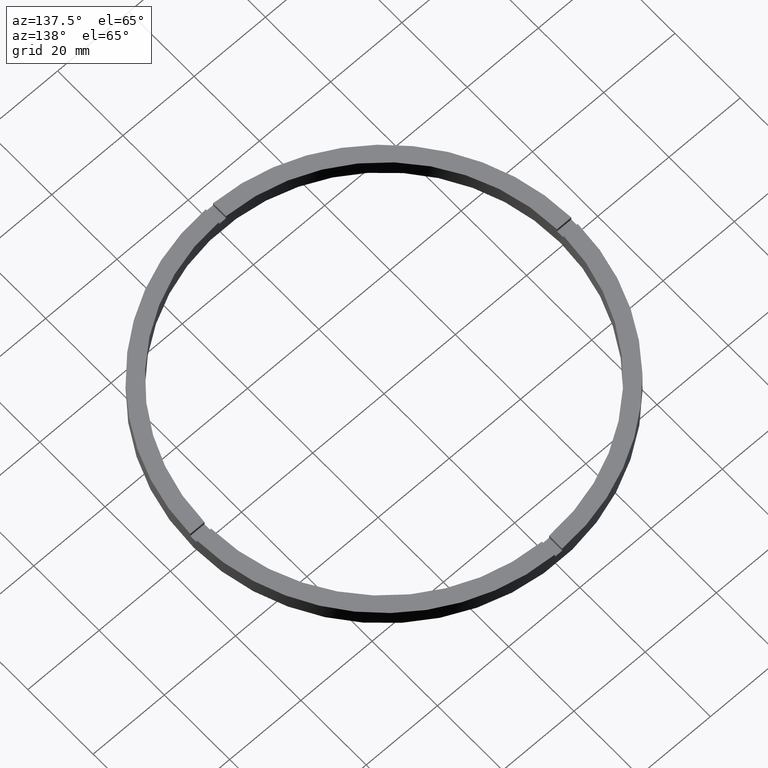
[diagram: clean part render]
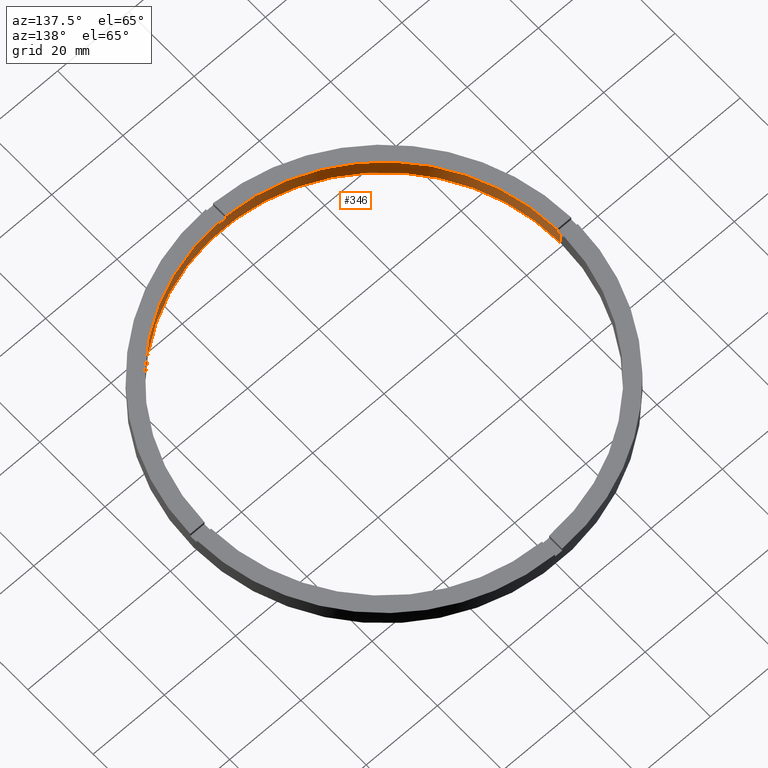
[diagram: same view with one face highlighted and labeled with its STEP entity id]
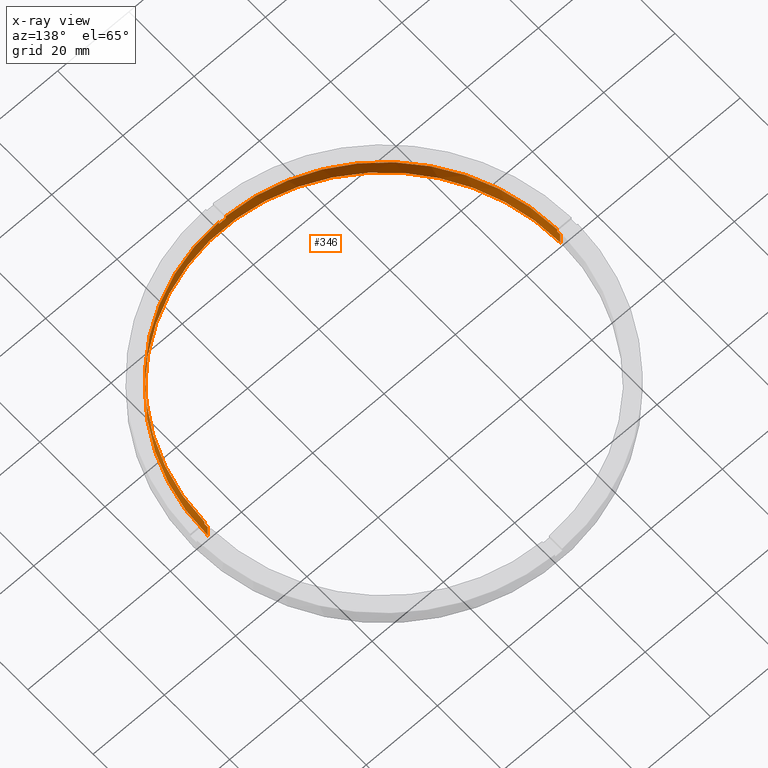
[diagram: x-ray of the same camera — body ghosted, the highlighted face saturated]
A machine part, auxiliary view. The second image highlights one B-rep face of the part: STEP entity #346.
The next image is the same camera in x-ray: the body ghosted, the highlighted face saturated — about 0% of this face is hidden behind the body in this view.
In plain terms, the highlighted cylindrical surface (partial cylindrical patch) has radius 49.5 mm, axis along (-0, -0, -1).
Its self-contained STEP definition (entity closure, byte-faithful):
#11 = CARTESIAN_POINT ( 'NONE',  ( -49.48989795907849043, -1.000000000000031974, 4.000000000000000000 ) ) ;
#17 = DIRECTION ( 'NONE',  ( 0.000000000000000000, 0.000000000000000000, 1.000000000000000000 ) ) ;
#18 = DIRECTION ( 'NONE',  ( 1.000000000000000000, 0.000000000000000000, 0.000000000000000000 ) ) ;
#27 = CARTESIAN_POINT ( 'NONE',  ( 0.9999999999998436806, -49.48989795907849043, 5.000000000000000000 ) ) ;
#28 = DIRECTION ( 'NONE',  ( 1.000000000000000000, 0.000000000000000000, 0.000000000000000000 ) ) ;
#50 = CARTESIAN_POINT ( 'NONE',  ( 0.000000000000000000, 0.000000000000000000, 4.000000000000000000 ) ) ;
#62 = EDGE_CURVE ( 'NONE', #467, #426, #91, .T. ) ;
#64 = CARTESIAN_POINT ( 'NONE',  ( 49.50000000000000711, 6.062001655779399300E-15, 4.000000000000000000 ) ) ;
#66 = AXIS2_PLACEMENT_3D ( 'NONE', #770, #501, #263 ) ;
#71 = VECTOR ( 'NONE', #320, 1000.000000000000000 ) ;
#73 = AXIS2_PLACEMENT_3D ( 'NONE', #543, #761, #767 ) ;
#91 = CIRCLE ( 'NONE', #420, 49.50000000000000711 ) ;
#97 = LINE ( 'NONE', #27, #71 ) ;
#105 = DIRECTION ( 'NONE',  ( -0.000000000000000000, -0.000000000000000000, -1.000000000000000000 ) ) ;
#109 = CIRCLE ( 'NONE', #66, 49.50000000000000711 ) ;
#111 = LINE ( 'NONE', #279, #658 ) ;
#114 = DIRECTION ( 'NONE',  ( 1.000000000000000000, 0.000000000000000000, 0.000000000000000000 ) ) ;
#122 = EDGE_CURVE ( 'NONE', #239, #177, #343, .T. ) ;
#126 = EDGE_CURVE ( 'NONE', #166, #177, #335, .T. ) ;
#132 = VERTEX_POINT ( 'NONE', #64 ) ;
#137 = EDGE_CURVE ( 'NONE', #462, #689, #347, .T. ) ;
#142 = CARTESIAN_POINT ( 'NONE',  ( 0.000000000000000000, 0.000000000000000000, 5.000000000000000000 ) ) ;
#143 = ORIENTED_EDGE ( 'NONE', *, *, #62, .T. ) ;
#152 = ORIENTED_EDGE ( 'NONE', *, *, #584, .F. ) ;
#157 = ORIENTED_EDGE ( 'NONE', *, *, #126, .F. ) ;
#166 = VERTEX_POINT ( 'NONE', #306 ) ;
#177 = VERTEX_POINT ( 'NONE', #458 ) ;
#178 = ORIENTED_EDGE ( 'NONE', *, *, #527, .T. ) ;
#182 = ORIENTED_EDGE ( 'NONE', *, *, #222, .F. ) ;
#187 = VERTEX_POINT ( 'NONE', #511 ) ;
#216 = VERTEX_POINT ( 'NONE', #589 ) ;
#222 = EDGE_CURVE ( 'NONE', #467, #187, #600, .T. ) ;
#224 = DIRECTION ( 'NONE',  ( -0.000000000000000000, -0.000000000000000000, -1.000000000000000000 ) ) ;
#230 = CARTESIAN_POINT ( 'NONE',  ( -49.48989795907849043, -1.000000000000031974, 5.000000000000000000 ) ) ;
#239 = VERTEX_POINT ( 'NONE', #542 ) ;
#248 = CARTESIAN_POINT ( 'NONE',  ( 0.000000000000000000, 0.000000000000000000, 4.000000000000000000 ) ) ;
#263 = DIRECTION ( 'NONE',  ( 1.000000000000000000, 0.000000000000000000, 0.000000000000000000 ) ) ;
#273 = AXIS2_PLACEMENT_3D ( 'NONE', #331, #524, #28 ) ;
#279 = CARTESIAN_POINT ( 'NONE',  ( -49.50000000000000711, 0.000000000000000000, 5.000000000000000000 ) ) ;
#281 = CARTESIAN_POINT ( 'NONE',  ( 49.50000000000000711, 6.062001655779399300E-15, 5.000000000000000000 ) ) ;
#299 = AXIS2_PLACEMENT_3D ( 'NONE', #608, #563, #18 ) ;
#306 = CARTESIAN_POINT ( 'NONE',  ( 49.48989795907849043, -1.000000000000154765, 4.000000000000000000 ) ) ;
#312 = EDGE_LOOP ( 'NONE', ( #429, #178, #152, #669, #654, #708, #706, #182, #143, #398, #685, #157 ) ) ;
#318 = CARTESIAN_POINT ( 'NONE',  ( -1.000000000000156319, -49.48989795907849043, 4.000000000000000000 ) ) ;
#320 = DIRECTION ( 'NONE',  ( -0.000000000000000000, -0.000000000000000000, -1.000000000000000000 ) ) ;
#322 = EDGE_CURVE ( 'NONE', #239, #426, #97, .T. ) ;
#323 = VECTOR ( 'NONE', #17, 1000.000000000000000 ) ;
#325 = CIRCLE ( 'NONE', #299, 49.50000000000000711 ) ;
#331 = CARTESIAN_POINT ( 'NONE',  ( 0.000000000000000000, 0.000000000000000000, 0.000000000000000000 ) ) ;
#334 = EDGE_CURVE ( 'NONE', #462, #187, #325, .T. ) ;
#335 = LINE ( 'NONE', #546, #323 ) ;
#343 = CIRCLE ( 'NONE', #73, 49.50000000000000711 ) ;
#346 = ADVANCED_FACE ( 'NONE', ( #592 ), #366, .F. ) ;
#347 = LINE ( 'NONE', #508, #611 ) ;
#366 = CYLINDRICAL_SURFACE ( 'NONE', #480, 49.50000000000000711 ) ;
#381 = VECTOR ( 'NONE', #105, 1000.000000000000000 ) ;
#388 = CIRCLE ( 'NONE', #507, 49.50000000000000711 ) ;
#392 = DIRECTION ( 'NONE',  ( -1.000000000000000000, 0.000000000000000000, 0.000000000000000000 ) ) ;
#398 = ORIENTED_EDGE ( 'NONE', *, *, #322, .F. ) ;
#401 = CARTESIAN_POINT ( 'NONE',  ( 0.9999999999998436806, -49.48989795907849043, 4.000000000000000000 ) ) ;
#406 = CIRCLE ( 'NONE', #273, 49.50000000000000711 ) ;
#408 = DIRECTION ( 'NONE',  ( -0.000000000000000000, -0.000000000000000000, -1.000000000000000000 ) ) ;
#419 = DIRECTION ( 'NONE',  ( 0.000000000000000000, 0.000000000000000000, 1.000000000000000000 ) ) ;
#420 = AXIS2_PLACEMENT_3D ( 'NONE', #50, #504, #114 ) ;
#426 = VERTEX_POINT ( 'NONE', #401 ) ;
#429 = ORIENTED_EDGE ( 'NONE', *, *, #684, .T. ) ;
#458 = CARTESIAN_POINT ( 'NONE',  ( 49.48989795907849043, -1.000000000000154765, 5.000000000000000000 ) ) ;
#462 = VERTEX_POINT ( 'NONE', #230 ) ;
#467 = VERTEX_POINT ( 'NONE', #318 ) ;
#480 = AXIS2_PLACEMENT_3D ( 'NONE', #142, #224, #392 ) ;
#494 = DIRECTION ( 'NONE',  ( 1.000000000000000000, 0.000000000000000000, 0.000000000000000000 ) ) ;
#495 = CARTESIAN_POINT ( 'NONE',  ( -1.000000000000156319, -49.48989795907849043, 5.000000000000000000 ) ) ;
#501 = DIRECTION ( 'NONE',  ( 0.000000000000000000, 0.000000000000000000, 1.000000000000000000 ) ) ;
#504 = DIRECTION ( 'NONE',  ( -0.000000000000000000, 0.000000000000000000, 1.000000000000000000 ) ) ;
#507 = AXIS2_PLACEMENT_3D ( 'NONE', #248, #419, #494 ) ;
#508 = CARTESIAN_POINT ( 'NONE',  ( -49.48989795907849043, -1.000000000000031974, 5.000000000000000000 ) ) ;
#511 = CARTESIAN_POINT ( 'NONE',  ( -1.000000000000156319, -49.48989795907849043, 5.000000000000000000 ) ) ;
#524 = DIRECTION ( 'NONE',  ( 0.000000000000000000, 0.000000000000000000, 1.000000000000000000 ) ) ;
#527 = EDGE_CURVE ( 'NONE', #132, #216, #647, .T. ) ;
#530 = EDGE_CURVE ( 'NONE', #664, #689, #388, .T. ) ;
#542 = CARTESIAN_POINT ( 'NONE',  ( 0.9999999999998436806, -49.48989795907849043, 5.000000000000000000 ) ) ;
#543 = CARTESIAN_POINT ( 'NONE',  ( 0.000000000000000000, 0.000000000000000000, 5.000000000000000000 ) ) ;
#546 = CARTESIAN_POINT ( 'NONE',  ( 49.48989795907849043, -1.000000000000154765, 5.000000000000000000 ) ) ;
#548 = CARTESIAN_POINT ( 'NONE',  ( -49.50000000000000711, 0.000000000000000000, 4.000000000000000000 ) ) ;
#563 = DIRECTION ( 'NONE',  ( 0.000000000000000000, 0.000000000000000000, 1.000000000000000000 ) ) ;
#576 = EDGE_CURVE ( 'NONE', #664, #691, #111, .T. ) ;
#584 = EDGE_CURVE ( 'NONE', #691, #216, #406, .T. ) ;
#589 = CARTESIAN_POINT ( 'NONE',  ( 49.50000000000000711, 6.062001655779399300E-15, 0.000000000000000000 ) ) ;
#592 = FACE_OUTER_BOUND ( 'NONE', #312, .T. ) ;
#598 = DIRECTION ( 'NONE',  ( -0.000000000000000000, -0.000000000000000000, -1.000000000000000000 ) ) ;
#600 = LINE ( 'NONE', #495, #606 ) ;
#606 = VECTOR ( 'NONE', #753, 1000.000000000000000 ) ;
#608 = CARTESIAN_POINT ( 'NONE',  ( 0.000000000000000000, 0.000000000000000000, 5.000000000000000000 ) ) ;
#611 = VECTOR ( 'NONE', #598, 1000.000000000000000 ) ;
#647 = LINE ( 'NONE', #281, #381 ) ;
#654 = ORIENTED_EDGE ( 'NONE', *, *, #530, .T. ) ;
#658 = VECTOR ( 'NONE', #408, 1000.000000000000000 ) ;
#664 = VERTEX_POINT ( 'NONE', #548 ) ;
#669 = ORIENTED_EDGE ( 'NONE', *, *, #576, .F. ) ;
#684 = EDGE_CURVE ( 'NONE', #166, #132, #109, .T. ) ;
#685 = ORIENTED_EDGE ( 'NONE', *, *, #122, .T. ) ;
#689 = VERTEX_POINT ( 'NONE', #11 ) ;
#691 = VERTEX_POINT ( 'NONE', #751 ) ;
#706 = ORIENTED_EDGE ( 'NONE', *, *, #334, .T. ) ;
#708 = ORIENTED_EDGE ( 'NONE', *, *, #137, .F. ) ;
#751 = CARTESIAN_POINT ( 'NONE',  ( -49.50000000000000711, 0.000000000000000000, 0.000000000000000000 ) ) ;
#753 = DIRECTION ( 'NONE',  ( 0.000000000000000000, 0.000000000000000000, 1.000000000000000000 ) ) ;
#761 = DIRECTION ( 'NONE',  ( 0.000000000000000000, 0.000000000000000000, 1.000000000000000000 ) ) ;
#767 = DIRECTION ( 'NONE',  ( 1.000000000000000000, 0.000000000000000000, 0.000000000000000000 ) ) ;
#770 = CARTESIAN_POINT ( 'NONE',  ( 0.000000000000000000, 0.000000000000000000, 4.000000000000000000 ) ) ;